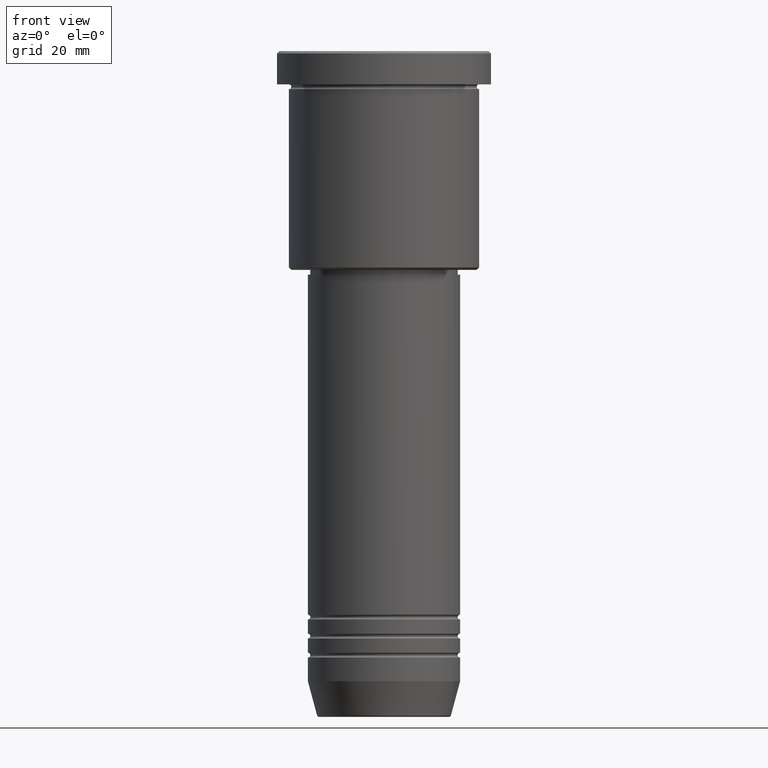
[diagram: clean part render]
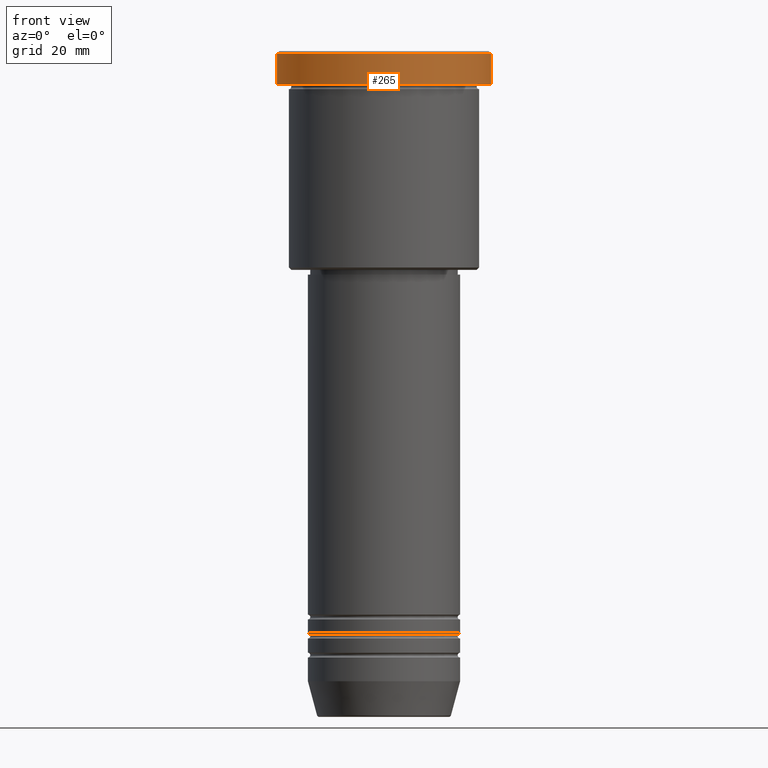
[diagram: same view with one face highlighted and labeled with its STEP entity id]
A machine part, front view. The second image highlights one B-rep face of the part: STEP entity #265.
In plain terms, the highlighted cylindrical surface (partial cylindrical patch) has radius 22.5 mm, axis along (-0, -0, 1).
Its self-contained STEP definition (entity closure, byte-faithful):
#61 = LINE ( 'NONE', #439, #1169 ) ;
#81 = CARTESIAN_POINT ( 'NONE',  ( 22.50000000000000000, 0.000000000000000000, -6.999999999999995559 ) ) ;
#100 = AXIS2_PLACEMENT_3D ( 'NONE', #986, #379, #263 ) ;
#121 = VERTEX_POINT ( 'NONE', #866 ) ;
#163 = AXIS2_PLACEMENT_3D ( 'NONE', #643, #726, #1006 ) ;
#167 = VERTEX_POINT ( 'NONE', #774 ) ;
#168 = CARTESIAN_POINT ( 'NONE',  ( -22.50000000000000000, 2.755455298081544778E-15, -6.999999999999995559 ) ) ;
#209 = CARTESIAN_POINT ( 'NONE',  ( 0.000000000000000000, 0.000000000000000000, -0.4999999999999657496 ) ) ;
#236 = VERTEX_POINT ( 'NONE', #168 ) ;
#263 = DIRECTION ( 'NONE',  ( 1.000000000000000000, 0.000000000000000000, 0.000000000000000000 ) ) ;
#265 = ADVANCED_FACE ( 'NONE', ( #443 ), #1179, .T. ) ;
#312 = EDGE_CURVE ( 'NONE', #236, #121, #639, .T. ) ;
#374 = CARTESIAN_POINT ( 'NONE',  ( -22.50000000000000000, 2.755455298081544778E-15, 0.000000000000000000 ) ) ;
#379 = DIRECTION ( 'NONE',  ( -0.000000000000000000, -0.000000000000000000, 1.000000000000000000 ) ) ;
#439 = CARTESIAN_POINT ( 'NONE',  ( 22.50000000000000000, 0.000000000000000000, 0.000000000000000000 ) ) ;
#443 = FACE_OUTER_BOUND ( 'NONE', #1143, .T. ) ;
#506 = ORIENTED_EDGE ( 'NONE', *, *, #921, .T. ) ;
#599 = AXIS2_PLACEMENT_3D ( 'NONE', #209, #945, #936 ) ;
#639 = LINE ( 'NONE', #374, #1010 ) ;
#643 = CARTESIAN_POINT ( 'NONE',  ( 0.000000000000000000, 0.000000000000000000, -6.999999999999995559 ) ) ;
#687 = ORIENTED_EDGE ( 'NONE', *, *, #850, .T. ) ;
#712 = DIRECTION ( 'NONE',  ( -0.000000000000000000, -0.000000000000000000, 1.000000000000000000 ) ) ;
#726 = DIRECTION ( 'NONE',  ( -0.000000000000000000, -0.000000000000000000, 1.000000000000000000 ) ) ;
#774 = CARTESIAN_POINT ( 'NONE',  ( 22.50000000000000000, 0.000000000000000000, -0.4999999999999657496 ) ) ;
#828 = DIRECTION ( 'NONE',  ( -0.000000000000000000, -0.000000000000000000, 1.000000000000000000 ) ) ;
#850 = EDGE_CURVE ( 'NONE', #968, #167, #61, .T. ) ;
#866 = CARTESIAN_POINT ( 'NONE',  ( -22.50000000000000000, 2.755455298081544778E-15, -0.4999999999999657496 ) ) ;
#874 = CIRCLE ( 'NONE', #599, 22.50000000000000000 ) ;
#921 = EDGE_CURVE ( 'NONE', #236, #968, #1012, .T. ) ;
#936 = DIRECTION ( 'NONE',  ( 1.000000000000000000, 0.000000000000000000, 0.000000000000000000 ) ) ;
#945 = DIRECTION ( 'NONE',  ( 0.000000000000000000, 0.000000000000000000, -1.000000000000000000 ) ) ;
#968 = VERTEX_POINT ( 'NONE', #81 ) ;
#986 = CARTESIAN_POINT ( 'NONE',  ( 0.000000000000000000, 0.000000000000000000, 0.000000000000000000 ) ) ;
#1002 = ORIENTED_EDGE ( 'NONE', *, *, #1109, .T. ) ;
#1006 = DIRECTION ( 'NONE',  ( 1.000000000000000000, 0.000000000000000000, 0.000000000000000000 ) ) ;
#1010 = VECTOR ( 'NONE', #828, 1000.000000000000000 ) ;
#1012 = CIRCLE ( 'NONE', #163, 22.50000000000000000 ) ;
#1064 = ORIENTED_EDGE ( 'NONE', *, *, #312, .F. ) ;
#1109 = EDGE_CURVE ( 'NONE', #167, #121, #874, .T. ) ;
#1143 = EDGE_LOOP ( 'NONE', ( #1064, #506, #687, #1002 ) ) ;
#1169 = VECTOR ( 'NONE', #712, 1000.000000000000000 ) ;
#1179 = CYLINDRICAL_SURFACE ( 'NONE', #100, 22.50000000000000000 ) ;